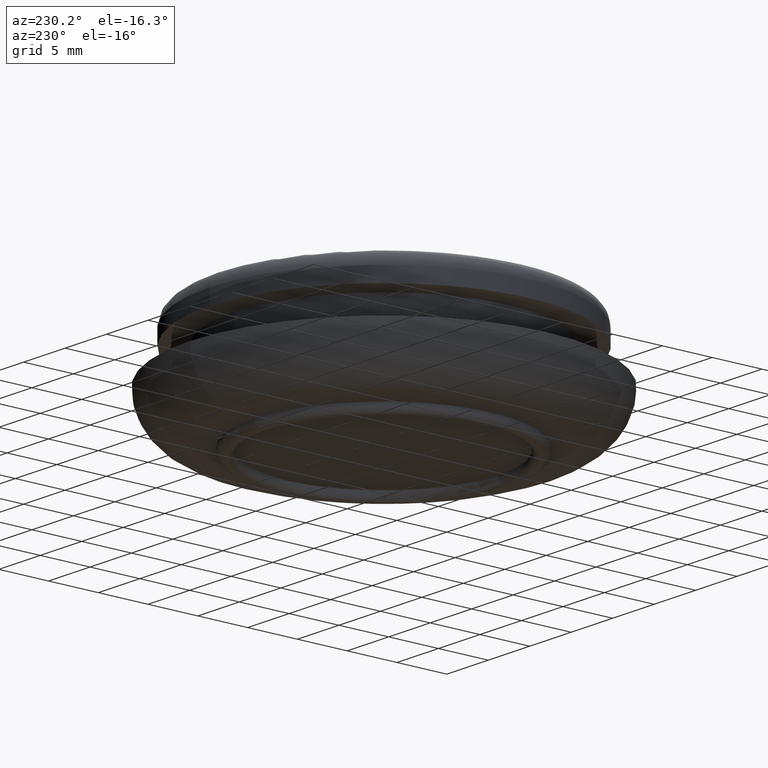
[diagram: clean part render]
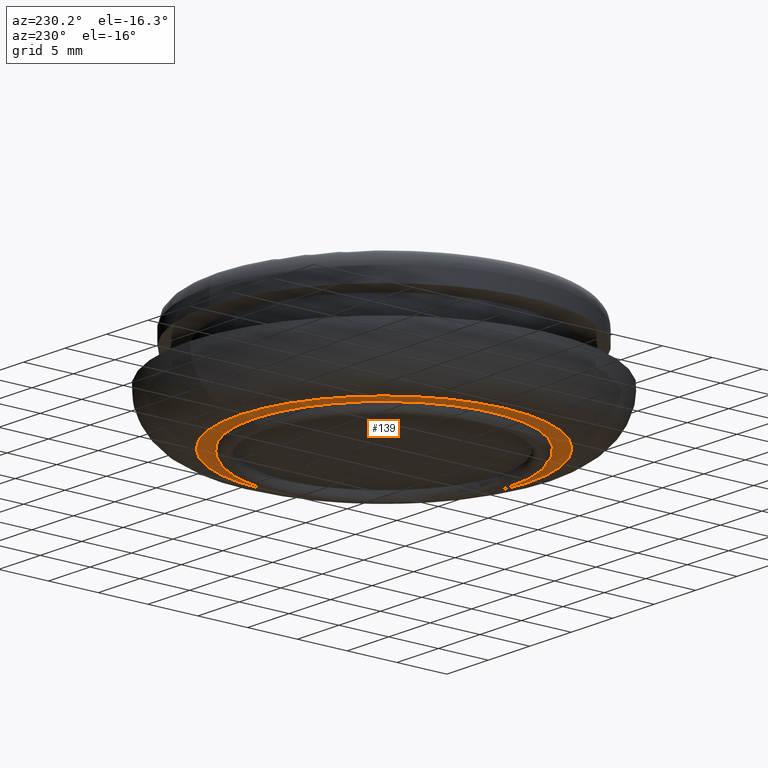
[diagram: same view with one face highlighted and labeled with its STEP entity id]
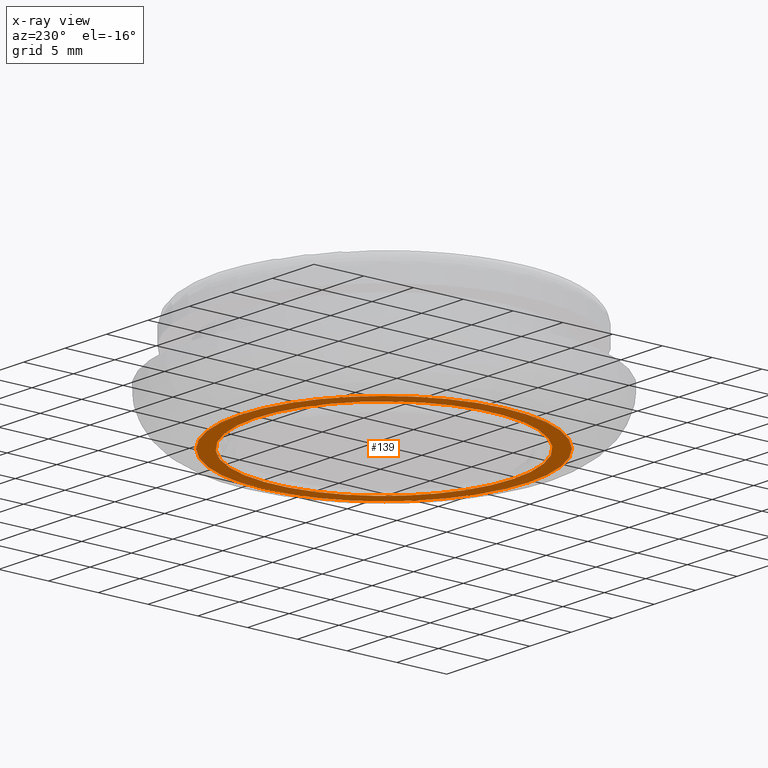
[diagram: x-ray of the same camera — body ghosted, the highlighted face saturated]
A machine part, auxiliary view. The second image highlights one B-rep face of the part: STEP entity #139.
The next image is the same camera in x-ray: the body ghosted, the highlighted face saturated — about 0% of this face is hidden behind the body in this view.
In plain terms, the highlighted planar face has unit normal (0, 0, -1).
Its self-contained STEP definition (entity closure, byte-faithful):
#2 = EDGE_CURVE ( 'NONE', #267, #573, #291, .T. ) ;
#12 = CARTESIAN_POINT ( 'NONE',  ( 0.0000000000000000000, 11.19999999999999800, -14.50000000000000000 ) ) ;
#64 = EDGE_CURVE ( 'NONE', #573, #267, #304, .T. ) ;
#98 = EDGE_CURVE ( 'NONE', #430, #548, #288, .T. ) ;
#123 = DIRECTION ( 'NONE',  ( 0.0000000000000000000, -1.000000000000000000, 0.0000000000000000000 ) ) ;
#129 = CARTESIAN_POINT ( 'NONE',  ( 2.081899558550500300E-015, 11.19999999999999800, 14.50000000000000000 ) ) ;
#137 = ORIENTED_EDGE ( 'NONE', *, *, #98, .F. ) ;
#139 = ADVANCED_FACE ( 'NONE', ( #410, #152 ), #544, .T. ) ;
#146 = EDGE_CURVE ( 'NONE', #548, #430, #271, .T. ) ;
#152 = FACE_OUTER_BOUND ( 'NONE', #639, .T. ) ;
#195 = CARTESIAN_POINT ( 'NONE',  ( 1.592040838891559100E-015, 11.19999999999999900, 13.00000000000000000 ) ) ;
#206 = ORIENTED_EDGE ( 'NONE', *, *, #2, .T. ) ;
#214 = DIRECTION ( 'NONE',  ( 0.0000000000000000000, 0.0000000000000000000, 1.000000000000000000 ) ) ;
#246 = AXIS2_PLACEMENT_3D ( 'NONE', #314, #123, #504 ) ;
#267 = VERTEX_POINT ( 'NONE', #364 ) ;
#271 = CIRCLE ( 'NONE', #640, 14.50000000000000000 ) ;
#288 = CIRCLE ( 'NONE', #470, 14.50000000000000000 ) ;
#291 = CIRCLE ( 'NONE', #428, 13.00000000000000000 ) ;
#304 = CIRCLE ( 'NONE', #246, 13.00000000000000000 ) ;
#307 = ORIENTED_EDGE ( 'NONE', *, *, #64, .T. ) ;
#314 = CARTESIAN_POINT ( 'NONE',  ( 0.0000000000000000000, 11.19999999999999900, 0.0000000000000000000 ) ) ;
#364 = CARTESIAN_POINT ( 'NONE',  ( 0.0000000000000000000, 11.19999999999999900, -13.00000000000000000 ) ) ;
#391 = CARTESIAN_POINT ( 'NONE',  ( 0.0000000000000000000, 11.19999999999999900, 0.0000000000000000000 ) ) ;
#410 = FACE_BOUND ( 'NONE', #535, .T. ) ;
#421 = DIRECTION ( 'NONE',  ( 0.0000000000000000000, 0.0000000000000000000, -1.000000000000000000 ) ) ;
#428 = AXIS2_PLACEMENT_3D ( 'NONE', #391, #541, #522 ) ;
#430 = VERTEX_POINT ( 'NONE', #129 ) ;
#453 = DIRECTION ( 'NONE',  ( 0.0000000000000000000, -1.000000000000000000, 0.0000000000000000000 ) ) ;
#470 = AXIS2_PLACEMENT_3D ( 'NONE', #641, #453, #503 ) ;
#503 = DIRECTION ( 'NONE',  ( 0.0000000000000000000, 0.0000000000000000000, -1.000000000000000000 ) ) ;
#504 = DIRECTION ( 'NONE',  ( 0.0000000000000000000, 0.0000000000000000000, -1.000000000000000000 ) ) ;
#506 = CARTESIAN_POINT ( 'NONE',  ( 0.0000000000000000000, 11.19999999999999800, 0.0000000000000000000 ) ) ;
#509 = DIRECTION ( 'NONE',  ( -0.0000000000000000000, 1.000000000000000000, 0.0000000000000000000 ) ) ;
#522 = DIRECTION ( 'NONE',  ( 0.0000000000000000000, 0.0000000000000000000, -1.000000000000000000 ) ) ;
#535 = EDGE_LOOP ( 'NONE', ( #206, #307 ) ) ;
#541 = DIRECTION ( 'NONE',  ( 0.0000000000000000000, -1.000000000000000000, 0.0000000000000000000 ) ) ;
#544 = PLANE ( 'NONE',  #601 ) ;
#548 = VERTEX_POINT ( 'NONE', #12 ) ;
#554 = DIRECTION ( 'NONE',  ( 0.0000000000000000000, -1.000000000000000000, 0.0000000000000000000 ) ) ;
#573 = VERTEX_POINT ( 'NONE', #195 ) ;
#601 = AXIS2_PLACEMENT_3D ( 'NONE', #606, #509, #214 ) ;
#606 = CARTESIAN_POINT ( 'NONE',  ( 14.50000000000000000, 11.19999999999999800, 0.0000000000000000000 ) ) ;
#619 = ORIENTED_EDGE ( 'NONE', *, *, #146, .F. ) ;
#639 = EDGE_LOOP ( 'NONE', ( #619, #137 ) ) ;
#640 = AXIS2_PLACEMENT_3D ( 'NONE', #506, #554, #421 ) ;
#641 = CARTESIAN_POINT ( 'NONE',  ( 0.0000000000000000000, 11.19999999999999800, 0.0000000000000000000 ) ) ;